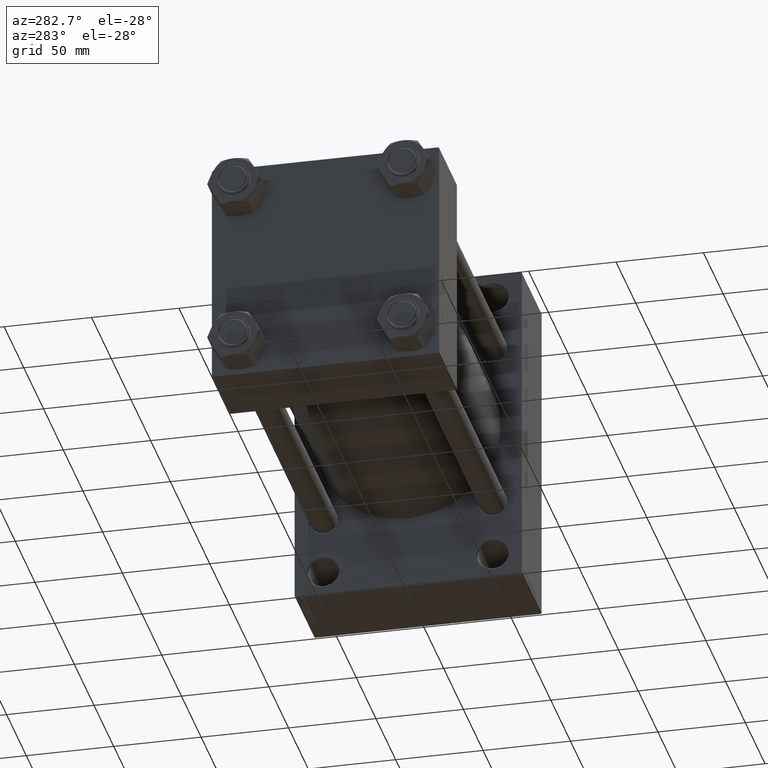
[diagram: clean part render]
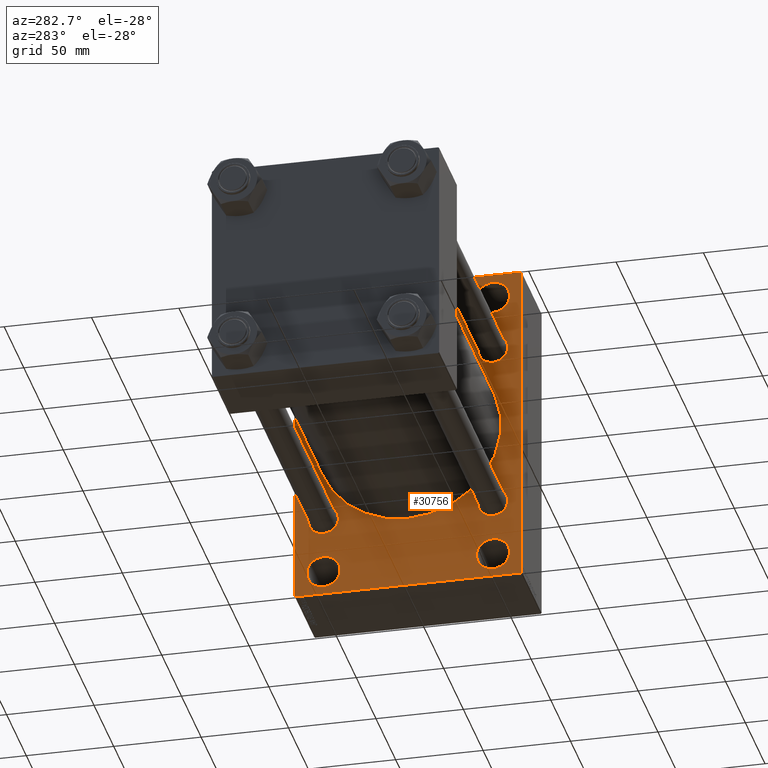
[diagram: same view with one face highlighted and labeled with its STEP entity id]
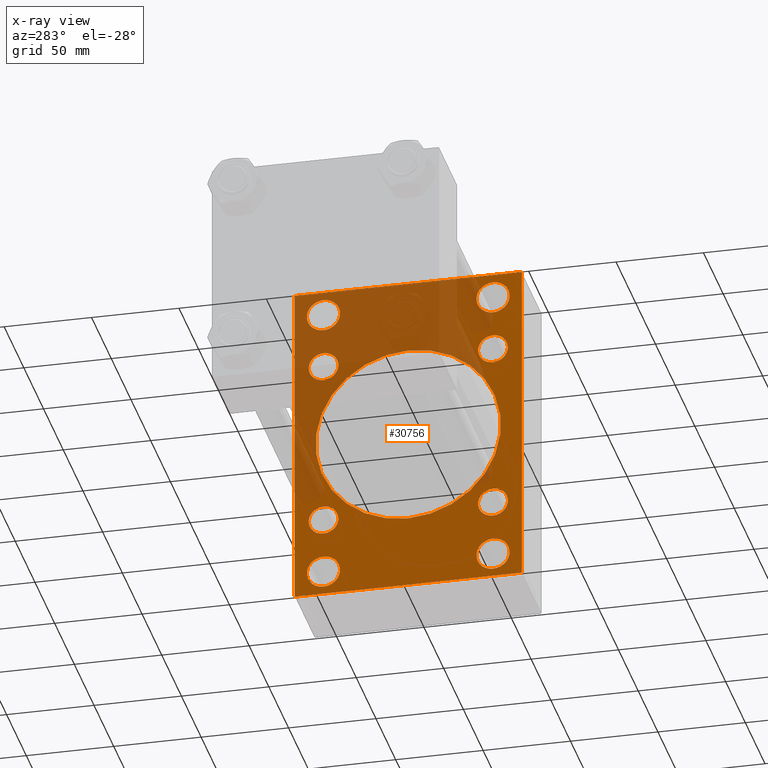
[diagram: x-ray of the same camera — body ghosted, the highlighted face saturated]
A machine part, auxiliary view. The second image highlights one B-rep face of the part: STEP entity #30756.
The next image is the same camera in x-ray: the body ghosted, the highlighted face saturated — about 42% of this face is hidden behind the body in this view.
In plain terms, the highlighted planar face has unit normal (-1, 0, 0).
Its self-contained STEP definition (entity closure, byte-faithful):
#216 = EDGE_CURVE ( 'NONE', #38853, #10188, #45951, .T. ) ;
#490 = CARTESIAN_POINT ( 'NONE',  ( 210.0000000000000284, -48.50000000000000000, 71.50000000000002842 ) ) ;
#1065 = AXIS2_PLACEMENT_3D ( 'NONE', #27271, #19081, #42223 ) ;
#1076 = EDGE_LOOP ( 'NONE', ( #12935, #42787 ) ) ;
#1298 = AXIS2_PLACEMENT_3D ( 'NONE', #19220, #3764, #26464 ) ;
#1562 = CARTESIAN_POINT ( 'NONE',  ( 210.0000000000000284, -64.50000000000001421, -95.00000000000002842 ) ) ;
#1816 = DIRECTION ( 'NONE',  ( -0.000000000000000000, 0.000000000000000000, 1.000000000000000000 ) ) ;
#1883 = VERTEX_POINT ( 'NONE', #6606 ) ;
#2347 = AXIS2_PLACEMENT_3D ( 'NONE', #20176, #34903, #1816 ) ;
#2467 = DIRECTION ( 'NONE',  ( 0.000000000000000000, 0.000000000000000000, -1.000000000000000000 ) ) ;
#3410 = AXIS2_PLACEMENT_3D ( 'NONE', #25860, #26092, #40801 ) ;
#3764 = DIRECTION ( 'NONE',  ( 1.000000000000000000, -0.000000000000000000, 0.000000000000000000 ) ) ;
#3908 = VERTEX_POINT ( 'NONE', #33307 ) ;
#3988 = DIRECTION ( 'NONE',  ( 1.000000000000000000, -0.000000000000000000, 0.000000000000000000 ) ) ;
#4306 = CARTESIAN_POINT ( 'NONE',  ( 210.0000000000000284, 48.50000000000000711, -90.50000000000000000 ) ) ;
#4347 = CARTESIAN_POINT ( 'NONE',  ( 210.0000000000000284, -48.49999999999999289, -81.00000000000001421 ) ) ;
#4454 = CARTESIAN_POINT ( 'NONE',  ( 210.0000000000000284, -48.49999999999999289, -81.00000000000001421 ) ) ;
#4647 = EDGE_CURVE ( 'NONE', #17887, #20898, #6290, .T. ) ;
#4797 = CIRCLE ( 'NONE', #27934, 8.500000000000007105 ) ;
#4870 = VERTEX_POINT ( 'NONE', #6010 ) ;
#4932 = CIRCLE ( 'NONE', #31924, 8.500000000000007105 ) ;
#4970 = PLANE ( 'NONE',  #2347 ) ;
#5208 = FACE_BOUND ( 'NONE', #36330, .T. ) ;
#5805 = CARTESIAN_POINT ( 'NONE',  ( 210.0000000000000284, 79.74999999999997158, 79.74999999999997158 ) ) ;
#5965 = CARTESIAN_POINT ( 'NONE',  ( 210.0000000000000284, -2.602085213965210642E-15, 53.00000000000000711 ) ) ;
#6010 = CARTESIAN_POINT ( 'NONE',  ( 210.0000000000000284, -65.00000000000001421, -94.50000000000002842 ) ) ;
#6055 = ORIENTED_EDGE ( 'NONE', *, *, #30234, .T. ) ;
#6073 = CARTESIAN_POINT ( 'NONE',  ( 210.0000000000000284, -48.44999999999999574, -39.95000000000001705 ) ) ;
#6290 = LINE ( 'NONE', #35748, #27855 ) ;
#6342 = AXIS2_PLACEMENT_3D ( 'NONE', #36100, #31540, #9569 ) ;
#6606 = CARTESIAN_POINT ( 'NONE',  ( 210.0000000000000284, -48.44999999999999574, 56.95000000000003837 ) ) ;
#6692 = DIRECTION ( 'NONE',  ( 0.000000000000000000, -1.000000000000000000, 0.000000000000000000 ) ) ;
#6882 = EDGE_CURVE ( 'NONE', #34500, #22505, #4797, .T. ) ;
#7041 = CARTESIAN_POINT ( 'NONE',  ( 210.0000000000000284, 64.49999999999998579, -95.00000000000001421 ) ) ;
#7065 = VERTEX_POINT ( 'NONE', #32783 ) ;
#7274 = CIRCLE ( 'NONE', #3410, 53.00000000000000711 ) ;
#7376 = EDGE_CURVE ( 'NONE', #23521, #24833, #17154, .T. ) ;
#7461 = CARTESIAN_POINT ( 'NONE',  ( 210.0000000000000284, -79.75000000000089528, 79.74999999999867839 ) ) ;
#7486 = DIRECTION ( 'NONE',  ( 1.000000000000000000, -0.000000000000000000, 0.000000000000000000 ) ) ;
#7786 = AXIS2_PLACEMENT_3D ( 'NONE', #29289, #41348, #33148 ) ;
#8249 = VERTEX_POINT ( 'NONE', #32232 ) ;
#8443 = DIRECTION ( 'NONE',  ( 0.000000000000000000, 0.000000000000000000, 1.000000000000000000 ) ) ;
#8643 = ORIENTED_EDGE ( 'NONE', *, *, #34869, .F. ) ;
#8698 = AXIS2_PLACEMENT_3D ( 'NONE', #4454, #26902, #30527 ) ;
#8922 = CARTESIAN_POINT ( 'NONE',  ( 210.0000000000000284, -48.49999999999999289, -90.50000000000000000 ) ) ;
#9398 = EDGE_CURVE ( 'NONE', #10188, #38853, #27205, .T. ) ;
#9569 = DIRECTION ( 'NONE',  ( 0.000000000000000000, 0.000000000000000000, 1.000000000000000000 ) ) ;
#9616 = EDGE_CURVE ( 'NONE', #28035, #4870, #46892, .T. ) ;
#9631 = AXIS2_PLACEMENT_3D ( 'NONE', #25212, #36771, #43054 ) ;
#9704 = CARTESIAN_POINT ( 'NONE',  ( 210.0000000000000284, 48.50000000000000711, 90.49999999999998579 ) ) ;
#9790 = FACE_BOUND ( 'NONE', #31936, .T. ) ;
#9805 = VERTEX_POINT ( 'NONE', #44220 ) ;
#10188 = VERTEX_POINT ( 'NONE', #8922 ) ;
#10232 = DIRECTION ( 'NONE',  ( 0.000000000000000000, 0.000000000000000000, 1.000000000000000000 ) ) ;
#10260 = EDGE_CURVE ( 'NONE', #24833, #23521, #33401, .T. ) ;
#10454 = VERTEX_POINT ( 'NONE', #39184 ) ;
#10599 = EDGE_CURVE ( 'NONE', #29499, #29727, #4932, .T. ) ;
#10807 = CARTESIAN_POINT ( 'NONE',  ( 210.0000000000000284, 64.99999999999997158, 94.99999999999997158 ) ) ;
#11143 = CARTESIAN_POINT ( 'NONE',  ( 210.0000000000000284, 48.50000000000000711, -81.00000000000001421 ) ) ;
#11164 = DIRECTION ( 'NONE',  ( 1.000000000000000000, -0.000000000000000000, 0.000000000000000000 ) ) ;
#11378 = DIRECTION ( 'NONE',  ( 0.000000000000000000, 0.000000000000000000, 1.000000000000000000 ) ) ;
#11628 = ORIENTED_EDGE ( 'NONE', *, *, #12563, .T. ) ;
#11963 = DIRECTION ( 'NONE',  ( -0.000000000000000000, -0.7071067811865573427, -0.7071067811865378028 ) ) ;
#12181 = DIRECTION ( 'NONE',  ( 0.000000000000000000, 0.000000000000000000, 1.000000000000000000 ) ) ;
#12563 = EDGE_CURVE ( 'NONE', #16330, #20629, #7274, .T. ) ;
#12822 = AXIS2_PLACEMENT_3D ( 'NONE', #4347, #7486, #8443 ) ;
#12935 = ORIENTED_EDGE ( 'NONE', *, *, #216, .T. ) ;
#13076 = ORIENTED_EDGE ( 'NONE', *, *, #35554, .T. ) ;
#13352 = AXIS2_PLACEMENT_3D ( 'NONE', #45246, #33433, #12181 ) ;
#13647 = EDGE_LOOP ( 'NONE', ( #22856, #45466 ) ) ;
#13757 = AXIS2_PLACEMENT_3D ( 'NONE', #44300, #3988, #45021 ) ;
#13956 = LINE ( 'NONE', #10807, #38533 ) ;
#14020 = DIRECTION ( 'NONE',  ( 0.000000000000000000, -1.000000000000000000, -1.067522139062650425E-16 ) ) ;
#14202 = CARTESIAN_POINT ( 'NONE',  ( 210.0000000000000284, -48.44999999999999574, -48.45000000000003126 ) ) ;
#14272 = AXIS2_PLACEMENT_3D ( 'NONE', #46641, #35548, #2467 ) ;
#14500 = ORIENTED_EDGE ( 'NONE', *, *, #9616, .F. ) ;
#14811 = CARTESIAN_POINT ( 'NONE',  ( 210.0000000000000284, 64.99999999999998579, -94.50000000000002842 ) ) ;
#15122 = VERTEX_POINT ( 'NONE', #35050 ) ;
#15594 = LINE ( 'NONE', #34169, #35023 ) ;
#15766 = ORIENTED_EDGE ( 'NONE', *, *, #35941, .T. ) ;
#16028 = ORIENTED_EDGE ( 'NONE', *, *, #32127, .T. ) ;
#16094 = FACE_BOUND ( 'NONE', #1076, .T. ) ;
#16330 = VERTEX_POINT ( 'NONE', #26221 ) ;
#16616 = EDGE_LOOP ( 'NONE', ( #21848, #11628 ) ) ;
#16747 = ORIENTED_EDGE ( 'NONE', *, *, #4647, .T. ) ;
#16942 = EDGE_CURVE ( 'NONE', #20629, #16330, #45214, .T. ) ;
#17038 = FACE_BOUND ( 'NONE', #16616, .T. ) ;
#17115 = DIRECTION ( 'NONE',  ( 0.000000000000000000, 0.000000000000000000, 1.000000000000000000 ) ) ;
#17154 = CIRCLE ( 'NONE', #6342, 8.500000000000007105 ) ;
#17866 = LINE ( 'NONE', #7461, #47040 ) ;
#17887 = VERTEX_POINT ( 'NONE', #7041 ) ;
#17966 = AXIS2_PLACEMENT_3D ( 'NONE', #18892, #11164, #45187 ) ;
#18384 = DIRECTION ( 'NONE',  ( 1.000000000000000000, -0.000000000000000000, 0.000000000000000000 ) ) ;
#18478 = CARTESIAN_POINT ( 'NONE',  ( 210.0000000000000284, -48.44999999999999574, 39.95000000000001705 ) ) ;
#18826 = ORIENTED_EDGE ( 'NONE', *, *, #7376, .T. ) ;
#18892 = CARTESIAN_POINT ( 'NONE',  ( 210.0000000000000284, 48.50000000000000711, 81.00000000000000000 ) ) ;
#18893 = ORIENTED_EDGE ( 'NONE', *, *, #6882, .T. ) ;
#19081 = DIRECTION ( 'NONE',  ( 1.000000000000000000, -0.000000000000000000, 0.000000000000000000 ) ) ;
#19220 = CARTESIAN_POINT ( 'NONE',  ( 210.0000000000000284, 48.45000000000000995, -48.45000000000001705 ) ) ;
#19334 = CARTESIAN_POINT ( 'NONE',  ( 210.0000000000000284, -65.00000000000001421, 94.49999999999997158 ) ) ;
#20174 = CARTESIAN_POINT ( 'NONE',  ( 210.0000000000000284, 48.45000000000000995, 39.95000000000000284 ) ) ;
#20176 = CARTESIAN_POINT ( 'NONE',  ( 210.0000000000000284, 0.000000000000000000, 0.000000000000000000 ) ) ;
#20242 = VERTEX_POINT ( 'NONE', #490 ) ;
#20629 = VERTEX_POINT ( 'NONE', #5965 ) ;
#20773 = DIRECTION ( 'NONE',  ( 0.000000000000000000, 0.7071067811865474617, -0.7071067811865474617 ) ) ;
#20898 = VERTEX_POINT ( 'NONE', #1562 ) ;
#20977 = DIRECTION ( 'NONE',  ( 1.000000000000000000, -0.000000000000000000, 0.000000000000000000 ) ) ;
#21135 = EDGE_LOOP ( 'NONE', ( #33174, #23294 ) ) ;
#21350 = CARTESIAN_POINT ( 'NONE',  ( 210.0000000000000284, -48.44999999999999574, 48.45000000000003126 ) ) ;
#21442 = CARTESIAN_POINT ( 'NONE',  ( 210.0000000000000284, -48.49999999999999289, -71.50000000000004263 ) ) ;
#21492 = CARTESIAN_POINT ( 'NONE',  ( 210.0000000000000284, 48.45000000000000995, -56.95000000000002416 ) ) ;
#21674 = EDGE_CURVE ( 'NONE', #22505, #34500, #45242, .T. ) ;
#21848 = ORIENTED_EDGE ( 'NONE', *, *, #16942, .T. ) ;
#22083 = ORIENTED_EDGE ( 'NONE', *, *, #30382, .T. ) ;
#22251 = ORIENTED_EDGE ( 'NONE', *, *, #10260, .T. ) ;
#22505 = VERTEX_POINT ( 'NONE', #33797 ) ;
#22856 = ORIENTED_EDGE ( 'NONE', *, *, #41695, .T. ) ;
#23294 = ORIENTED_EDGE ( 'NONE', *, *, #10599, .T. ) ;
#23521 = VERTEX_POINT ( 'NONE', #6073 ) ;
#23576 = FACE_BOUND ( 'NONE', #21135, .T. ) ;
#23742 = ORIENTED_EDGE ( 'NONE', *, *, #40247, .T. ) ;
#23809 = FACE_OUTER_BOUND ( 'NONE', #45952, .T. ) ;
#24353 = CARTESIAN_POINT ( 'NONE',  ( 210.0000000000000284, 64.99999999999997158, 94.99999999999997158 ) ) ;
#24703 = CARTESIAN_POINT ( 'NONE',  ( 210.0000000000000284, -65.00000000000001421, 94.99999999999997158 ) ) ;
#24833 = VERTEX_POINT ( 'NONE', #40797 ) ;
#25201 = ORIENTED_EDGE ( 'NONE', *, *, #28649, .T. ) ;
#25212 = CARTESIAN_POINT ( 'NONE',  ( 210.0000000000000284, -48.50000000000000000, 81.00000000000000000 ) ) ;
#25382 = EDGE_CURVE ( 'NONE', #46472, #9805, #42240, .T. ) ;
#25860 = CARTESIAN_POINT ( 'NONE',  ( 210.0000000000000284, -2.602085213965210642E-15, 0.000000000000000000 ) ) ;
#26092 = DIRECTION ( 'NONE',  ( 1.000000000000000000, 0.000000000000000000, 0.000000000000000000 ) ) ;
#26221 = CARTESIAN_POINT ( 'NONE',  ( 210.0000000000000284, 3.888542821515762466E-15, -53.00000000000000711 ) ) ;
#26340 = DIRECTION ( 'NONE',  ( 0.000000000000000000, 0.000000000000000000, 1.000000000000000000 ) ) ;
#26414 = EDGE_LOOP ( 'NONE', ( #34436, #18893 ) ) ;
#26446 = CIRCLE ( 'NONE', #17966, 9.499999999999980460 ) ;
#26464 = DIRECTION ( 'NONE',  ( 0.000000000000000000, 0.000000000000000000, 1.000000000000000000 ) ) ;
#26611 = ORIENTED_EDGE ( 'NONE', *, *, #25382, .T. ) ;
#26902 = DIRECTION ( 'NONE',  ( 1.000000000000000000, -0.000000000000000000, 0.000000000000000000 ) ) ;
#27065 = VECTOR ( 'NONE', #6692, 1000.000000000000000 ) ;
#27205 = CIRCLE ( 'NONE', #8698, 9.499999999999980460 ) ;
#27271 = CARTESIAN_POINT ( 'NONE',  ( 210.0000000000000284, -48.44999999999999574, 48.45000000000003126 ) ) ;
#27855 = VECTOR ( 'NONE', #14020, 1000.000000000000000 ) ;
#27934 = AXIS2_PLACEMENT_3D ( 'NONE', #39535, #28922, #17115 ) ;
#28035 = VERTEX_POINT ( 'NONE', #19334 ) ;
#28351 = DIRECTION ( 'NONE',  ( 1.000000000000000000, -0.000000000000000000, 0.000000000000000000 ) ) ;
#28508 = CARTESIAN_POINT ( 'NONE',  ( 210.0000000000000284, 48.45000000000000995, 48.45000000000001705 ) ) ;
#28649 = EDGE_CURVE ( 'NONE', #9805, #46472, #33994, .T. ) ;
#28922 = DIRECTION ( 'NONE',  ( 1.000000000000000000, -0.000000000000000000, 0.000000000000000000 ) ) ;
#29289 = CARTESIAN_POINT ( 'NONE',  ( 210.0000000000000284, -48.50000000000000000, 81.00000000000000000 ) ) ;
#29499 = VERTEX_POINT ( 'NONE', #20174 ) ;
#29727 = VERTEX_POINT ( 'NONE', #31878 ) ;
#30234 = EDGE_CURVE ( 'NONE', #8249, #3908, #39334, .T. ) ;
#30307 = CIRCLE ( 'NONE', #13352, 8.500000000000007105 ) ;
#30382 = EDGE_CURVE ( 'NONE', #28035, #7065, #17866, .T. ) ;
#30434 = CIRCLE ( 'NONE', #9631, 9.499999999999980460 ) ;
#30501 = EDGE_LOOP ( 'NONE', ( #47454, #23742 ) ) ;
#30527 = DIRECTION ( 'NONE',  ( 0.000000000000000000, 0.000000000000000000, 1.000000000000000000 ) ) ;
#30756 = ADVANCED_FACE ( 'NONE', ( #9790, #16094, #30805, #31043, #38041, #23576, #38283, #5208, #17038, #23809 ), #4970, .T. ) ;
#30805 = FACE_BOUND ( 'NONE', #32958, .T. ) ;
#31043 = FACE_BOUND ( 'NONE', #30501, .T. ) ;
#31540 = DIRECTION ( 'NONE',  ( 1.000000000000000000, -0.000000000000000000, 0.000000000000000000 ) ) ;
#31647 = AXIS2_PLACEMENT_3D ( 'NONE', #34058, #18384, #26340 ) ;
#31713 = VECTOR ( 'NONE', #44187, 1000.000000000000114 ) ;
#31878 = CARTESIAN_POINT ( 'NONE',  ( 210.0000000000000284, 48.45000000000000995, 56.95000000000002416 ) ) ;
#31924 = AXIS2_PLACEMENT_3D ( 'NONE', #28508, #43209, #39594 ) ;
#31936 = EDGE_LOOP ( 'NONE', ( #45459, #15766 ) ) ;
#32127 = EDGE_CURVE ( 'NONE', #3908, #47403, #13956, .T. ) ;
#32232 = CARTESIAN_POINT ( 'NONE',  ( 210.0000000000000284, 64.49999999999997158, 94.99999999999997158 ) ) ;
#32316 = DIRECTION ( 'NONE',  ( 0.000000000000000000, 0.000000000000000000, 1.000000000000000000 ) ) ;
#32639 = DIRECTION ( 'NONE',  ( 1.000000000000000000, -0.000000000000000000, 0.000000000000000000 ) ) ;
#32783 = CARTESIAN_POINT ( 'NONE',  ( 210.0000000000000284, -64.50000000000002842, 94.99999999999997158 ) ) ;
#32958 = EDGE_LOOP ( 'NONE', ( #25201, #26611 ) ) ;
#33148 = DIRECTION ( 'NONE',  ( 0.000000000000000000, 0.000000000000000000, 1.000000000000000000 ) ) ;
#33174 = ORIENTED_EDGE ( 'NONE', *, *, #39970, .T. ) ;
#33307 = CARTESIAN_POINT ( 'NONE',  ( 210.0000000000000284, 64.99999999999997158, 94.49999999999997158 ) ) ;
#33379 = EDGE_CURVE ( 'NONE', #45376, #10454, #36255, .T. ) ;
#33401 = CIRCLE ( 'NONE', #43413, 8.500000000000007105 ) ;
#33433 = DIRECTION ( 'NONE',  ( 1.000000000000000000, -0.000000000000000000, 0.000000000000000000 ) ) ;
#33797 = CARTESIAN_POINT ( 'NONE',  ( 210.0000000000000284, 48.45000000000000995, -39.95000000000000284 ) ) ;
#33994 = CIRCLE ( 'NONE', #36292, 9.499999999999980460 ) ;
#34058 = CARTESIAN_POINT ( 'NONE',  ( 210.0000000000000284, 48.50000000000000711, 81.00000000000000000 ) ) ;
#34169 = CARTESIAN_POINT ( 'NONE',  ( 210.0000000000000284, 79.74999999999913314, -79.75000000000132161 ) ) ;
#34233 = CIRCLE ( 'NONE', #1065, 8.500000000000007105 ) ;
#34436 = ORIENTED_EDGE ( 'NONE', *, *, #21674, .T. ) ;
#34500 = VERTEX_POINT ( 'NONE', #21492 ) ;
#34869 = EDGE_CURVE ( 'NONE', #8249, #7065, #39761, .T. ) ;
#34903 = DIRECTION ( 'NONE',  ( -1.000000000000000000, 0.000000000000000000, -0.000000000000000000 ) ) ;
#35023 = VECTOR ( 'NONE', #11963, 1000.000000000000000 ) ;
#35050 = CARTESIAN_POINT ( 'NONE',  ( 210.0000000000000284, -48.50000000000000000, 90.49999999999998579 ) ) ;
#35548 = DIRECTION ( 'NONE',  ( 1.000000000000000000, 0.000000000000000000, 0.000000000000000000 ) ) ;
#35554 = EDGE_CURVE ( 'NONE', #20898, #4870, #44906, .T. ) ;
#35569 = CIRCLE ( 'NONE', #7786, 9.499999999999980460 ) ;
#35748 = CARTESIAN_POINT ( 'NONE',  ( 210.0000000000000284, 64.99999999999998579, -95.00000000000001421 ) ) ;
#35941 = EDGE_CURVE ( 'NONE', #20242, #15122, #35569, .T. ) ;
#36100 = CARTESIAN_POINT ( 'NONE',  ( 210.0000000000000284, -48.44999999999999574, -48.45000000000003126 ) ) ;
#36255 = CIRCLE ( 'NONE', #31647, 9.499999999999980460 ) ;
#36292 = AXIS2_PLACEMENT_3D ( 'NONE', #11143, #32639, #11378 ) ;
#36330 = EDGE_LOOP ( 'NONE', ( #18826, #22251 ) ) ;
#36771 = DIRECTION ( 'NONE',  ( 1.000000000000000000, -0.000000000000000000, 0.000000000000000000 ) ) ;
#37439 = CARTESIAN_POINT ( 'NONE',  ( 210.0000000000000284, -79.75000000000001421, -79.75000000000001421 ) ) ;
#37818 = VECTOR ( 'NONE', #20773, 1000.000000000000114 ) ;
#38041 = FACE_BOUND ( 'NONE', #13647, .T. ) ;
#38283 = FACE_BOUND ( 'NONE', #26414, .T. ) ;
#38533 = VECTOR ( 'NONE', #43628, 1000.000000000000000 ) ;
#38853 = VERTEX_POINT ( 'NONE', #21442 ) ;
#39184 = CARTESIAN_POINT ( 'NONE',  ( 210.0000000000000284, 48.50000000000000711, 71.50000000000002842 ) ) ;
#39334 = LINE ( 'NONE', #5805, #37818 ) ;
#39535 = CARTESIAN_POINT ( 'NONE',  ( 210.0000000000000284, 48.45000000000000995, -48.45000000000001705 ) ) ;
#39573 = DIRECTION ( 'NONE',  ( -0.000000000000000000, 0.7071067811865378028, 0.7071067811865573427 ) ) ;
#39594 = DIRECTION ( 'NONE',  ( 0.000000000000000000, 0.000000000000000000, 1.000000000000000000 ) ) ;
#39761 = LINE ( 'NONE', #24353, #27065 ) ;
#39970 = EDGE_CURVE ( 'NONE', #29727, #29499, #30307, .T. ) ;
#40247 = EDGE_CURVE ( 'NONE', #10454, #45376, #26446, .T. ) ;
#40797 = CARTESIAN_POINT ( 'NONE',  ( 210.0000000000000284, -48.44999999999999574, -56.95000000000003837 ) ) ;
#40801 = DIRECTION ( 'NONE',  ( 0.000000000000000000, 0.000000000000000000, -1.000000000000000000 ) ) ;
#41348 = DIRECTION ( 'NONE',  ( 1.000000000000000000, -0.000000000000000000, 0.000000000000000000 ) ) ;
#41657 = ORIENTED_EDGE ( 'NONE', *, *, #47217, .T. ) ;
#41695 = EDGE_CURVE ( 'NONE', #1883, #44161, #34233, .T. ) ;
#42223 = DIRECTION ( 'NONE',  ( 0.000000000000000000, 0.000000000000000000, 1.000000000000000000 ) ) ;
#42240 = CIRCLE ( 'NONE', #13757, 9.499999999999980460 ) ;
#42787 = ORIENTED_EDGE ( 'NONE', *, *, #9398, .T. ) ;
#42802 = DIRECTION ( 'NONE',  ( 0.000000000000000000, 0.000000000000000000, -1.000000000000000000 ) ) ;
#43054 = DIRECTION ( 'NONE',  ( 0.000000000000000000, 0.000000000000000000, 1.000000000000000000 ) ) ;
#43209 = DIRECTION ( 'NONE',  ( 1.000000000000000000, -0.000000000000000000, 0.000000000000000000 ) ) ;
#43413 = AXIS2_PLACEMENT_3D ( 'NONE', #14202, #20977, #32316 ) ;
#43628 = DIRECTION ( 'NONE',  ( 0.000000000000000000, 7.304098846218135653E-17, -1.000000000000000000 ) ) ;
#44161 = VERTEX_POINT ( 'NONE', #18478 ) ;
#44187 = DIRECTION ( 'NONE',  ( 0.000000000000000000, -0.7071067811865474617, 0.7071067811865474617 ) ) ;
#44206 = VECTOR ( 'NONE', #42802, 1000.000000000000000 ) ;
#44220 = CARTESIAN_POINT ( 'NONE',  ( 210.0000000000000284, 48.50000000000000711, -71.50000000000004263 ) ) ;
#44300 = CARTESIAN_POINT ( 'NONE',  ( 210.0000000000000284, 48.50000000000000711, -81.00000000000001421 ) ) ;
#44906 = LINE ( 'NONE', #37439, #31713 ) ;
#45021 = DIRECTION ( 'NONE',  ( 0.000000000000000000, 0.000000000000000000, 1.000000000000000000 ) ) ;
#45187 = DIRECTION ( 'NONE',  ( 0.000000000000000000, 0.000000000000000000, 1.000000000000000000 ) ) ;
#45214 = CIRCLE ( 'NONE', #14272, 53.00000000000000711 ) ;
#45242 = CIRCLE ( 'NONE', #1298, 8.500000000000007105 ) ;
#45246 = CARTESIAN_POINT ( 'NONE',  ( 210.0000000000000284, 48.45000000000000995, 48.45000000000001705 ) ) ;
#45376 = VERTEX_POINT ( 'NONE', #9704 ) ;
#45459 = ORIENTED_EDGE ( 'NONE', *, *, #47412, .T. ) ;
#45466 = ORIENTED_EDGE ( 'NONE', *, *, #45853, .T. ) ;
#45853 = EDGE_CURVE ( 'NONE', #44161, #1883, #45896, .T. ) ;
#45896 = CIRCLE ( 'NONE', #47400, 8.500000000000007105 ) ;
#45951 = CIRCLE ( 'NONE', #12822, 9.499999999999980460 ) ;
#45952 = EDGE_LOOP ( 'NONE', ( #16747, #13076, #14500, #22083, #8643, #6055, #16028, #41657 ) ) ;
#46472 = VERTEX_POINT ( 'NONE', #4306 ) ;
#46641 = CARTESIAN_POINT ( 'NONE',  ( 210.0000000000000284, -2.602085213965210642E-15, 0.000000000000000000 ) ) ;
#46892 = LINE ( 'NONE', #24703, #44206 ) ;
#47040 = VECTOR ( 'NONE', #39573, 1000.000000000000000 ) ;
#47217 = EDGE_CURVE ( 'NONE', #47403, #17887, #15594, .T. ) ;
#47400 = AXIS2_PLACEMENT_3D ( 'NONE', #21350, #28351, #10232 ) ;
#47403 = VERTEX_POINT ( 'NONE', #14811 ) ;
#47412 = EDGE_CURVE ( 'NONE', #15122, #20242, #30434, .T. ) ;
#47454 = ORIENTED_EDGE ( 'NONE', *, *, #33379, .T. ) ;